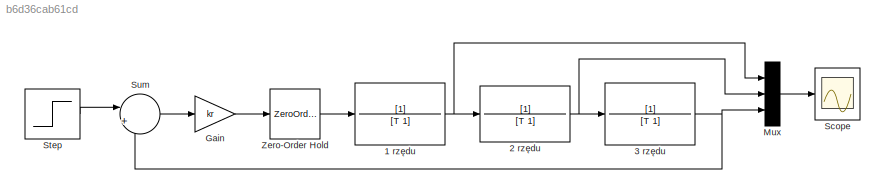
MODEL slx_b6d36cab61cd
KIND model
CONFIG AbsTol = auto
CONFIG EnableMultiTasking = off
CONFIG FixedStep = auto
CONFIG MaxStep = auto
CONFIG MinStep = auto
CONFIG RelTol = 1e-3
CONFIG SampleTimeConstraint = Unconstrained
CONFIG SolverName = VariableStepAuto
CONFIG StartTime = 0.0
CONFIG StopTime = 200
BLOCK [TransferFcn]  2 rzędu
  Denominator = [T 1]
BLOCK [TransferFcn] 1 rzędu
  Denominator = [T 1]
BLOCK [TransferFcn] 3 rzędu
  Denominator = [T 1]
BLOCK [Gain] Gain
  Gain = kr
BLOCK [Mux] Mux
  DisplayOption = bar
  Inputs = 3
BLOCK [Scope] Scope
  Floating = off
  NumInputPorts = 1
  ScopeSpecificationString = Simulink.scopes.TimeScopeBlockCfg('CurrentConfiguration', extmgr.ConfigurationSet(extmgr.Configuration('Core','General UI',true),extmgr.Configuration('Core','Source UI',true),extmgr.Configuration('Sources','WiredSimulink',true,'DataLoggingVariableName','y','DataLogging',true,'DataLoggingSaveFormat','StructureWithTime'),extmgr.Configuration('Visuals','Time Domain',true,'SerializedDisplays',{struct(...<+1507ch>
BLOCK [Step] Step
  SampleTime = Tp
BLOCK [Sum] Sum
  Inputs = |+-
BLOCK [ZeroOrderHold] Zero-Order Hold
  SampleTime = Tp
NET  2 rzędu:1 -> 3 rzędu:1, Mux:2
NET 1 rzędu:1 ->  2 rzędu:1, Mux:1
NET 3 rzędu:1 -> Mux:3, Sum:2
LINE Gain:1 -> Zero-Order Hold:1
LINE Mux:1 -> Scope:1
LINE Step:1 -> Sum:1
LINE Sum:1 -> Gain:1
LINE Zero-Order Hold:1 -> 1 rzędu:1
note: NET lines group one-source signal fan-out (src -> all destinations, sorted); 1:1 wires keep LINE
